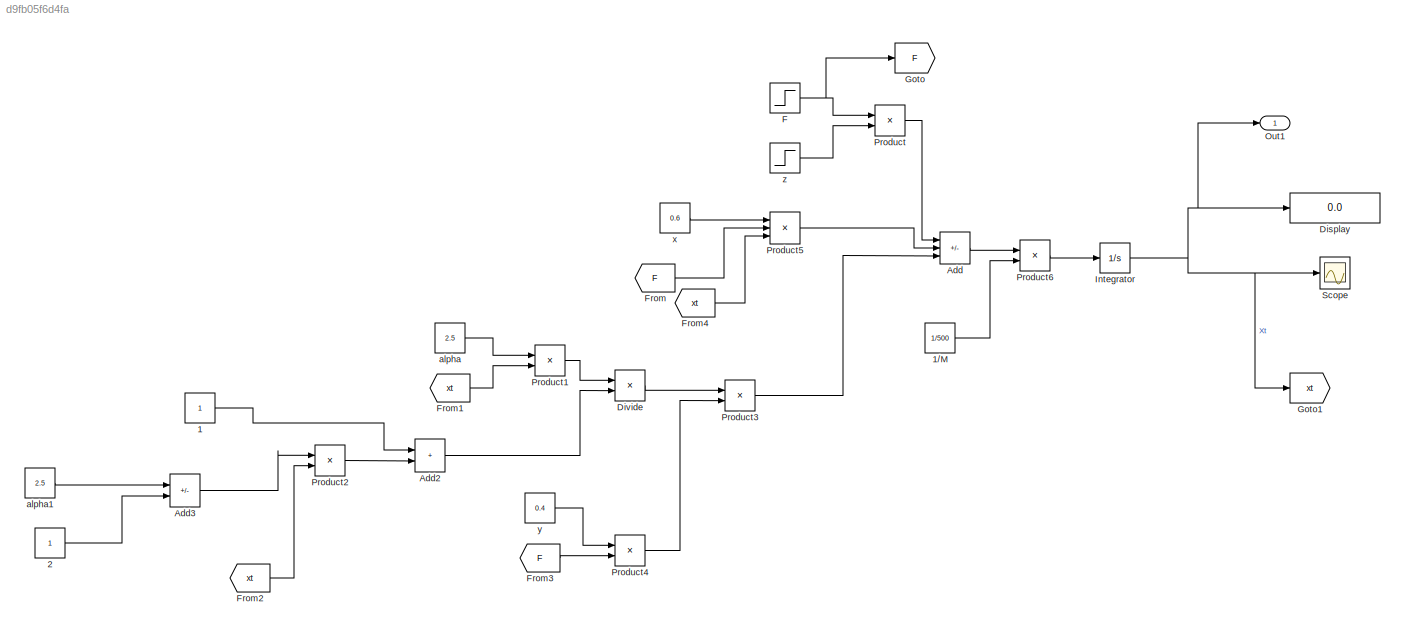
MODEL slx_d9fb05f6d4fa
KIND model
CONFIG AbsTol = auto
CONFIG EnableMultiTasking = off
CONFIG FixedStep = auto
CONFIG MaxStep = auto
CONFIG MinStep = auto
CONFIG RelTol = 1e-3
CONFIG SampleTimeConstraint = Unconstrained
CONFIG SolverName = VariableStepAuto
CONFIG StartTime = 0.0
CONFIG StopTime = 600
BLOCK [Constant] 1
BLOCK [Constant] 1//M
  Value = 1/500
BLOCK [Constant] 2
BLOCK [Sum] Add
  IconShape = rectangular
  Inputs = +--
  Ports = [3, 1]
BLOCK [Sum] Add2
  IconShape = rectangular
  Ports = [2, 1]
BLOCK [Sum] Add3
  IconShape = rectangular
  Inputs = +-
  Ports = [2, 1]
BLOCK [Display] Display
  Decimation = 1
  Ports = [1]
BLOCK [Product] Divide
  Inputs = */
  Ports = [2, 1]
BLOCK [Step] F
  After = 10
  Before = 10
  SampleTime = 0
  Time = 0
BLOCK [From] From
  GotoTag = F
BLOCK [From] From1
  GotoTag = xt
BLOCK [From] From2
  GotoTag = xt
BLOCK [From] From3
  GotoTag = F
BLOCK [From] From4
  GotoTag = xt
BLOCK [Goto] Goto
  GotoTag = F
BLOCK [Goto] Goto1
  GotoTag = xt
BLOCK [Integrator] Integrator
  InitialCondition = 0.410132
  Ports = [1, 1]
BLOCK [Outport] Out1
BLOCK [Product] Product
  Ports = [2, 1]
BLOCK [Product] Product1
  Ports = [2, 1]
BLOCK [Product] Product2
  Ports = [2, 1]
BLOCK [Product] Product3
  Ports = [2, 1]
BLOCK [Product] Product4
  Ports = [2, 1]
BLOCK [Product] Product5
  Inputs = 3
  Ports = [3, 1]
BLOCK [Product] Product6
  Ports = [2, 1]
BLOCK [Scope] Scope
  Floating = off
  NumInputPorts = 1
  Ports = [1]
  ScopeSpecificationString = Simulink.scopes.TimeScopeBlockCfg('CurrentConfiguration', extmgr.ConfigurationSet(extmgr.Configuration('Core','General UI',true),extmgr.Configuration('Core','Source UI',true),extmgr.Configuration('Sources','WiredSimulink',true),extmgr.Configuration('Visuals','Time Domain',true,'SerializedDisplays',{struct('MinYLimReal','0','MaxYLimReal','0.9','YLabelReal','','MinYLimMag','0.41013198','MaxYLimMag',...<+1329ch>
BLOCK [Constant] alpha
  Value = 2.5
BLOCK [Constant] alpha1
  Value = 2.5
BLOCK [Constant] x
  Value = 0.6
BLOCK [Constant] y
  Value = 0.4
BLOCK [Step] z
  After = 0.7
  Before = 0.5
  SampleTime = 0
  Time = 0
LINE 1//M:1 -> Product6:2
LINE 1:1 -> Add2:1
LINE 2:1 -> Add3:2
LINE Add2:1 -> Divide:2
LINE Add3:1 -> Product2:1
LINE Add:1 -> Product6:1
LINE Divide:1 -> Product3:1
NET F:1 -> Goto:1, Product:1
LINE From1:1 -> Product1:2
LINE From2:1 -> Product2:2
LINE From3:1 -> Product4:2
LINE From4:1 -> Product5:3
LINE From:1 -> Product5:2
NET Integrator:1 -> Display:1, Goto1:1, Out1:1, Scope:1
LINE Product1:1 -> Divide:1
LINE Product2:1 -> Add2:2
LINE Product3:1 -> Add:3
LINE Product4:1 -> Product3:2
LINE Product5:1 -> Add:2
LINE Product6:1 -> Integrator:1
LINE Product:1 -> Add:1
LINE alpha1:1 -> Add3:1
LINE alpha:1 -> Product1:1
LINE x:1 -> Product5:1
LINE y:1 -> Product4:1
LINE z:1 -> Product:2
note: NET lines group one-source signal fan-out (src -> all destinations, sorted); 1:1 wires keep LINE
